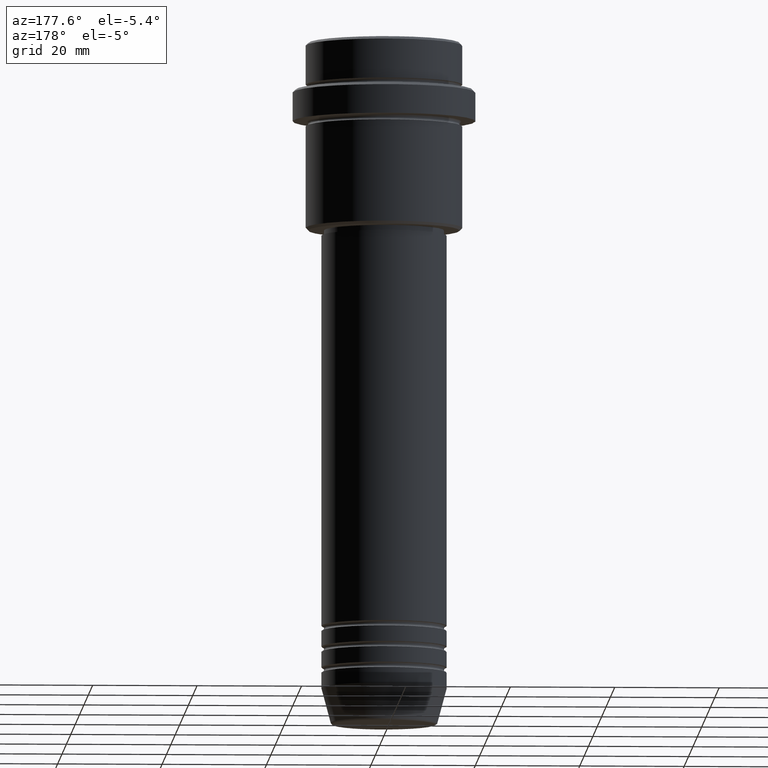
[diagram: clean part render]
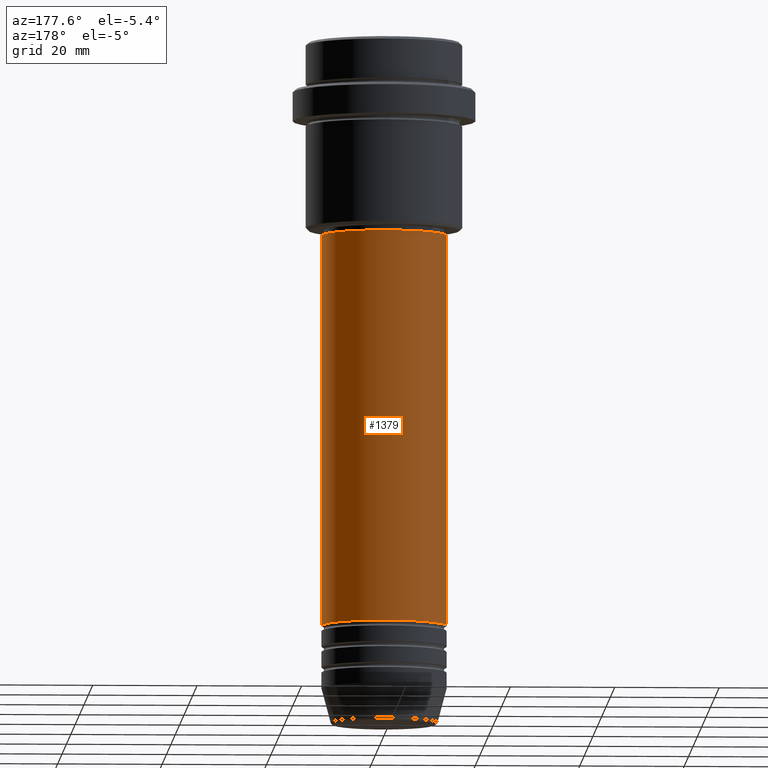
[diagram: same view with one face highlighted and labeled with its STEP entity id]
A machine part, auxiliary view. The second image highlights one B-rep face of the part: STEP entity #1379.
In plain terms, the highlighted cylindrical surface (partial cylindrical patch) has radius 12 mm, axis along (-0, -0, 1).
Its self-contained STEP definition (entity closure, byte-faithful):
#1 = DIRECTION ( 'NONE',  ( -0.000000000000000000, -0.000000000000000000, 1.000000000000000000 ) ) ;
#63 = AXIS2_PLACEMENT_3D ( 'NONE', #440, #112, #542 ) ;
#106 = VECTOR ( 'NONE', #1398, 1000.000000000000000 ) ;
#112 = DIRECTION ( 'NONE',  ( -0.000000000000000000, -0.000000000000000000, 1.000000000000000000 ) ) ;
#119 = DIRECTION ( 'NONE',  ( 1.000000000000000000, 0.000000000000000000, 0.000000000000000000 ) ) ;
#162 = LINE ( 'NONE', #385, #106 ) ;
#172 = LINE ( 'NONE', #637, #465 ) ;
#207 = CARTESIAN_POINT ( 'NONE',  ( 11.99999999999999822, 0.000000000000000000, -36.99999999999997158 ) ) ;
#208 = CARTESIAN_POINT ( 'NONE',  ( 0.000000000000000000, 0.000000000000000000, 0.000000000000000000 ) ) ;
#300 = CARTESIAN_POINT ( 'NONE',  ( -12.00000000000000000, 1.469576158976823947E-15, -111.9999999999998721 ) ) ;
#348 = ORIENTED_EDGE ( 'NONE', *, *, #525, .F. ) ;
#354 = AXIS2_PLACEMENT_3D ( 'NONE', #539, #1, #119 ) ;
#385 = CARTESIAN_POINT ( 'NONE',  ( -12.00000000000000000, 1.469576158976823947E-15, 0.000000000000000000 ) ) ;
#409 = AXIS2_PLACEMENT_3D ( 'NONE', #208, #737, #1244 ) ;
#440 = CARTESIAN_POINT ( 'NONE',  ( 0.000000000000000000, 0.000000000000000000, -111.9999999999998721 ) ) ;
#459 = VERTEX_POINT ( 'NONE', #207 ) ;
#465 = VECTOR ( 'NONE', #966, 1000.000000000000000 ) ;
#499 = ORIENTED_EDGE ( 'NONE', *, *, #1403, .T. ) ;
#521 = CYLINDRICAL_SURFACE ( 'NONE', #409, 12.00000000000000000 ) ;
#525 = EDGE_CURVE ( 'NONE', #459, #1225, #1218, .T. ) ;
#539 = CARTESIAN_POINT ( 'NONE',  ( 0.000000000000000000, 0.000000000000000000, -36.99999999999997158 ) ) ;
#542 = DIRECTION ( 'NONE',  ( 1.000000000000000000, 0.000000000000000000, 0.000000000000000000 ) ) ;
#556 = CIRCLE ( 'NONE', #63, 12.00000000000000000 ) ;
#637 = CARTESIAN_POINT ( 'NONE',  ( 12.00000000000000000, 0.000000000000000000, 0.000000000000000000 ) ) ;
#737 = DIRECTION ( 'NONE',  ( -0.000000000000000000, -0.000000000000000000, 1.000000000000000000 ) ) ;
#743 = FACE_OUTER_BOUND ( 'NONE', #1170, .T. ) ;
#822 = EDGE_CURVE ( 'NONE', #1296, #459, #172, .T. ) ;
#905 = VERTEX_POINT ( 'NONE', #300 ) ;
#966 = DIRECTION ( 'NONE',  ( -0.000000000000000000, -0.000000000000000000, 1.000000000000000000 ) ) ;
#996 = EDGE_CURVE ( 'NONE', #1296, #905, #556, .T. ) ;
#1170 = EDGE_LOOP ( 'NONE', ( #1267, #499, #348, #1371 ) ) ;
#1218 = CIRCLE ( 'NONE', #354, 11.99999999999999822 ) ;
#1225 = VERTEX_POINT ( 'NONE', #1339 ) ;
#1244 = DIRECTION ( 'NONE',  ( 1.000000000000000000, 0.000000000000000000, 0.000000000000000000 ) ) ;
#1267 = ORIENTED_EDGE ( 'NONE', *, *, #996, .T. ) ;
#1296 = VERTEX_POINT ( 'NONE', #1374 ) ;
#1339 = CARTESIAN_POINT ( 'NONE',  ( -11.99999999999999822, 1.469576158976823750E-15, -36.99999999999997158 ) ) ;
#1371 = ORIENTED_EDGE ( 'NONE', *, *, #822, .F. ) ;
#1374 = CARTESIAN_POINT ( 'NONE',  ( 12.00000000000000000, 0.000000000000000000, -111.9999999999998721 ) ) ;
#1379 = ADVANCED_FACE ( 'NONE', ( #743 ), #521, .T. ) ;
#1398 = DIRECTION ( 'NONE',  ( -0.000000000000000000, -0.000000000000000000, 1.000000000000000000 ) ) ;
#1403 = EDGE_CURVE ( 'NONE', #905, #1225, #162, .T. ) ;